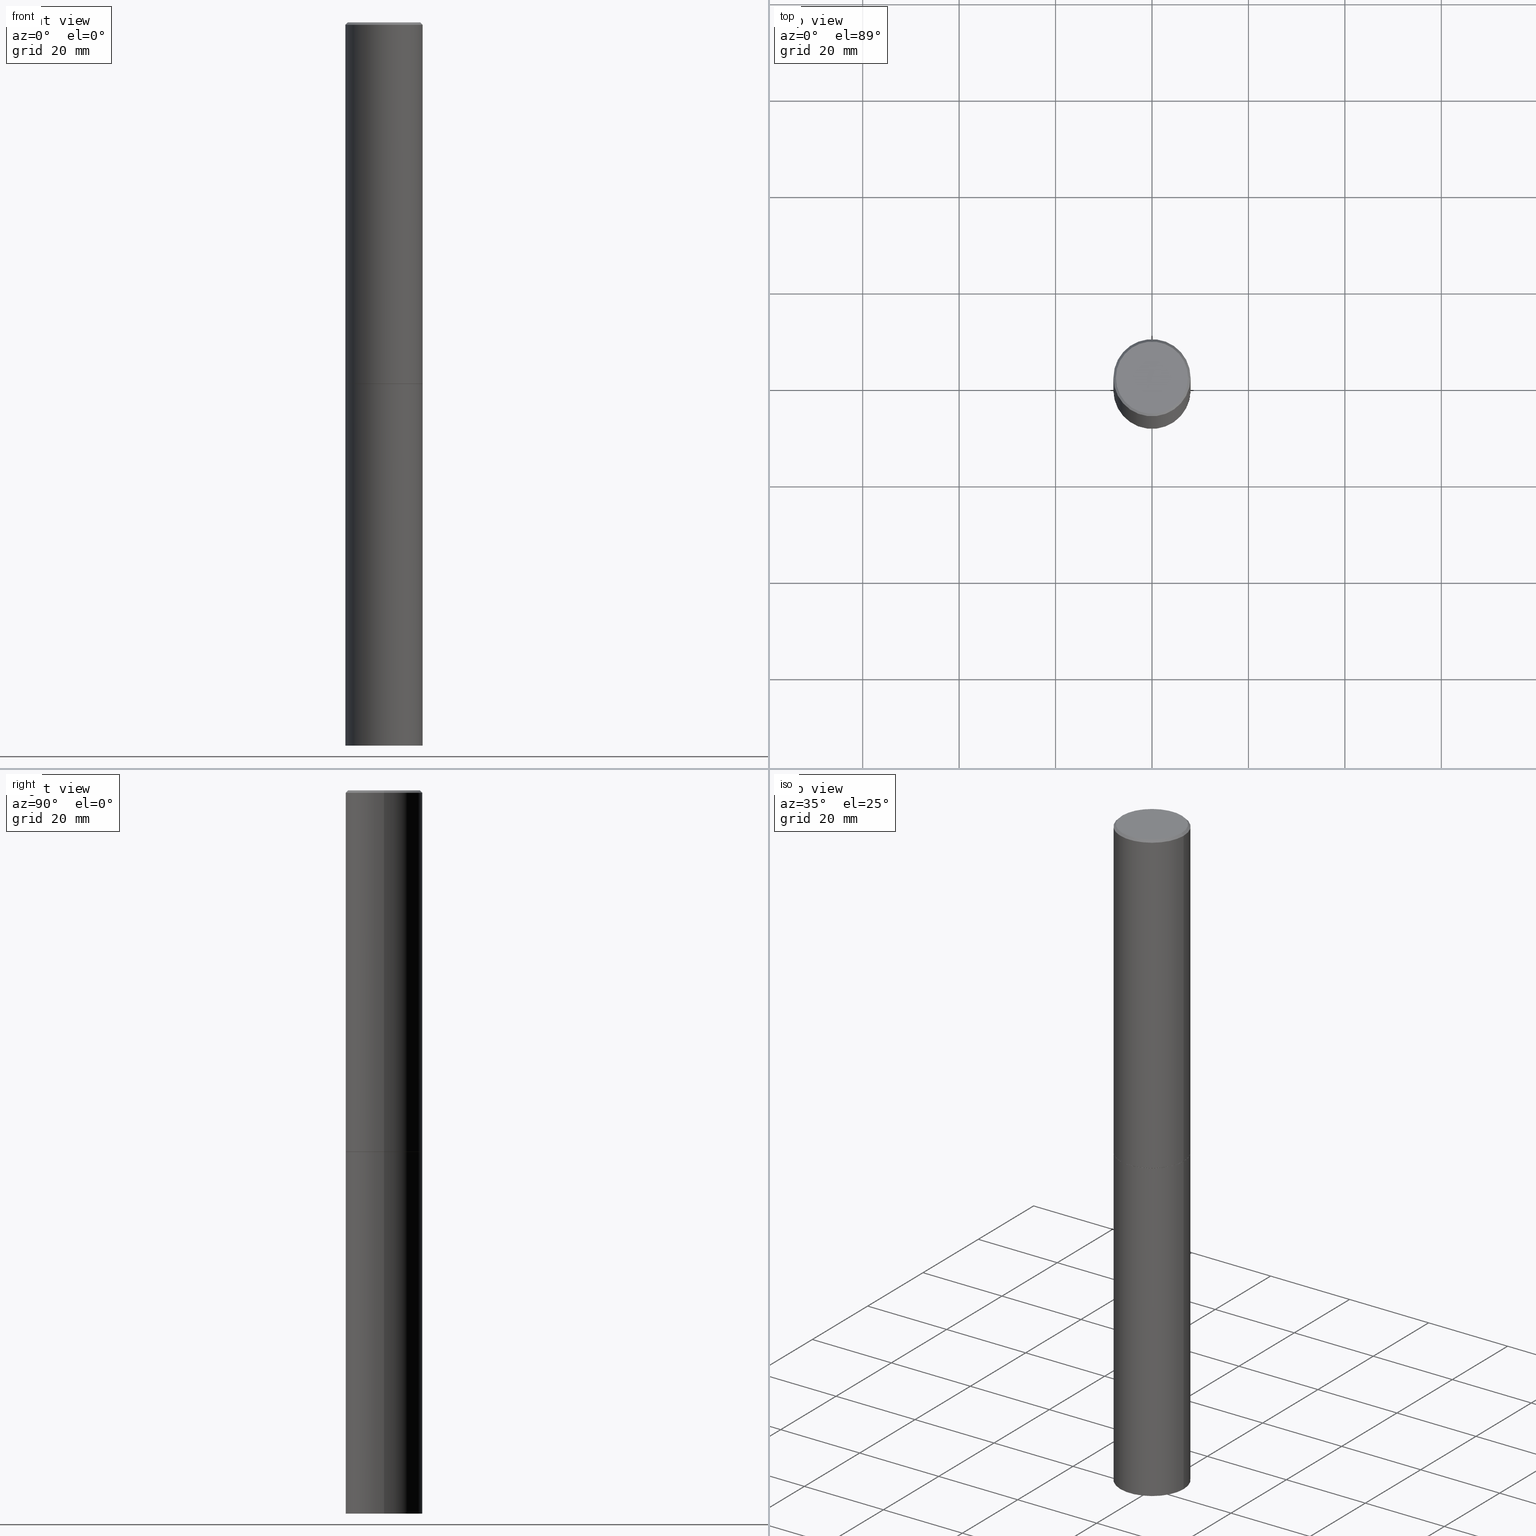
[diagram: canonical four-view strip — front | top / right | iso, engineering-drawing reading convention]
A machine part, canonical four-view strip (front | top / right | iso — engineering-drawing reading convention). The complete STEP part file that produces these views, byte-faithful:
ISO-10303-21;
HEADER;
FILE_DESCRIPTION (( 'STEP AP203' ),
    '1' );
FILE_NAME ('49475.STEP',
    '2024-02-28T23:04:33',
    ( '' ),
    ( '' ),
    'SwSTEP 2.0',
    'SolidWorks 2023',
    '' );
FILE_SCHEMA (( 'CONFIG_CONTROL_DESIGN' ));
ENDSEC;

DATA;
#1 = VECTOR ( 'NONE', #200, 39.37007874015748143 ) ;
#2 = APPLICATION_PROTOCOL_DEFINITION ( 'international standard', 'config_control_design', 1994, #256 ) ;
#3 = VECTOR ( 'NONE', #67, 39.37007874015748143 ) ;
#4 = ORIENTED_EDGE ( 'NONE', *, *, #334, .F. ) ;
#5 = CARTESIAN_POINT ( 'NONE',  ( -0.3149500000000000077, -2.949963201043651274E-15, -2.951700000000000212 ) ) ;
#6 = CARTESIAN_POINT ( 'NONE',  ( -0.3149500000000000077, 2.237854346276435590E-15, -1.549218606675782676E-29 ) ) ;
#7 = EDGE_CURVE ( 'NONE', #56, #255, #266, .T. ) ;
#8 = DIRECTION ( 'NONE',  ( -2.445468806185136597E-29, 3.491481338843145583E-15, 1.000000000000000000 ) ) ;
#9 = DATE_TIME_ROLE ( 'classification_date' ) ;
#10 = DIRECTION ( 'NONE',  ( 1.000000000000000000, -6.982962677686265133E-15, 0.000000000000000000 ) ) ;
#11 = DATE_AND_TIME ( #238, #287 ) ;
#12 = DIRECTION ( 'NONE',  ( -2.445468806185136597E-29, 3.491481338843145583E-15, 1.000000000000000000 ) ) ;
#13 = DIRECTION ( 'NONE',  ( -2.445468806185136877E-29, 3.491481338843145188E-15, 1.000000000000000000 ) ) ;
#14 = CIRCLE ( 'NONE', #143, 0.2949499999999996014 ) ;
#15 = FACE_OUTER_BOUND ( 'NONE', #192, .T. ) ;
#16 = FACE_OUTER_BOUND ( 'NONE', #315, .T. ) ;
#17 = APPROVAL ( #348, 'UNSPECIFIED' ) ;
#18 = CARTESIAN_POINT ( 'NONE',  ( 7.220735744022853640E-29, -1.030929694920215659E-14, -2.952700000000000546 ) ) ;
#19 = DIRECTION ( 'NONE',  ( -2.445468806185136877E-29, 3.491481338843145188E-15, 1.000000000000000000 ) ) ;
#20 = COORDINATED_UNIVERSAL_TIME_OFFSET ( 5, 0, .BEHIND. ) ;
#21 = ORIENTED_EDGE ( 'NONE', *, *, #188, .F. ) ;
#22 = DIRECTION ( 'NONE',  ( 1.000000000000000000, -6.982962677686263555E-15, 0.000000000000000000 ) ) ;
#23 = ORIENTED_EDGE ( 'NONE', *, *, #97, .T. ) ;
#24 = LOCAL_TIME ( 18, 4, 33.00000000000000000, #20 ) ;
#25 = ORIENTED_EDGE ( 'NONE', *, *, #364, .T. ) ;
#26 =( NAMED_UNIT ( * ) PLANE_ANGLE_UNIT ( ) SI_UNIT ( $, .RADIAN. ) );
#27 = ORIENTED_EDGE ( 'NONE', *, *, #217, .F. ) ;
#28 = VECTOR ( 'NONE', #177, 39.37007874015748143 ) ;
#29 = FACE_OUTER_BOUND ( 'NONE', #113, .T. ) ;
#30 = LINE ( 'NONE', #320, #46 ) ;
#31 = EDGE_CURVE ( 'NONE', #91, #313, #14, .T. ) ;
#32 = CARTESIAN_POINT ( 'NONE',  ( 7.220735744022853640E-29, -1.030929694920215659E-14, -2.952700000000000546 ) ) ;
#33 = AXIS2_PLACEMENT_3D ( 'NONE', #242, #218, #100 ) ;
#34 = LINE ( 'NONE', #151, #294 ) ;
#35 = EDGE_CURVE ( 'NONE', #251, #80, #30, .T. ) ;
#36 = DIRECTION ( 'NONE',  ( -2.445468806185136597E-29, 3.491481338843145583E-15, 1.000000000000000000 ) ) ;
#37 = LINE ( 'NONE', #245, #292 ) ;
#38 = CYLINDRICAL_SURFACE ( 'NONE', #156, 0.3149500000000000077 ) ;
#39 = AXIS2_PLACEMENT_3D ( 'NONE', #324, #361, #325 ) ;
#40 = LOCAL_TIME ( 18, 4, 33.00000000000000000, #261 ) ;
#41 = FACE_OUTER_BOUND ( 'NONE', #341, .T. ) ;
#42 = APPROVAL ( #350, 'UNSPECIFIED' ) ;
#43 = CYLINDRICAL_SURFACE ( 'NONE', #214, 0.3149499999999998967 ) ;
#44 = CARTESIAN_POINT ( 'NONE',  ( 4.890937612370290675E-31, -6.982962677686316261E-17, -0.02000000000000007327 ) ) ;
#45 = EDGE_LOOP ( 'NONE', ( #234, #50, #23, #288 ) ) ;
#46 = VECTOR ( 'NONE', #152, 39.37007874015748143 ) ;
#47 = DIRECTION ( 'NONE',  ( 2.438088387897960049E-29, -3.491481338843145188E-15, -1.000000000000000000 ) ) ;
#48 = PRODUCT_RELATED_PRODUCT_CATEGORY ( 'detail', '', ( #263 ) ) ;
#49 = PERSON_AND_ORGANIZATION_ROLE ( 'design_owner' ) ;
#50 = ORIENTED_EDGE ( 'NONE', *, *, #123, .T. ) ;
#51 = ORIENTED_EDGE ( 'NONE', *, *, #7, .F. ) ;
#52 = AXIS2_PLACEMENT_3D ( 'NONE', #32, #147, #267 ) ;
#53 = AXIS2_PLACEMENT_3D ( 'NONE', #139, #193, #259 ) ;
#54 = CARTESIAN_POINT ( 'NONE',  ( -0.3149499999999996747, 2.129454468560424206E-15, -0.02000000000000007327 ) ) ;
#55 =( NAMED_UNIT ( * ) SI_UNIT ( $, .STERADIAN. ) SOLID_ANGLE_UNIT ( ) );
#56 = VERTEX_POINT ( 'NONE', #297 ) ;
#57 = AXIS2_PLACEMENT_3D ( 'NONE', #144, #351, #203 ) ;
#58 = DIRECTION ( 'NONE',  ( 1.000000000000000000, -6.982962677686265133E-15, 0.000000000000000000 ) ) ;
#59 = EDGE_CURVE ( 'NONE', #91, #170, #271, .T. ) ;
#60 = DIRECTION ( 'NONE',  ( -1.000000000000000000, 6.982962677686265922E-15, -4.876176775795935793E-29 ) ) ;
#61 = APPROVAL_DATE_TIME ( #262, #42 ) ;
#62 = ORIENTED_EDGE ( 'NONE', *, *, #31, .F. ) ;
#63 = AXIS2_PLACEMENT_3D ( 'NONE', #120, #346, #205 ) ;
#64 = PLANE ( 'NONE',  #130 ) ;
#65 = CC_DESIGN_APPROVAL ( #42, ( #89 ) ) ;
#66 = DIRECTION ( 'NONE',  ( 1.000000000000000000, -6.982962677686265133E-15, 0.000000000000000000 ) ) ;
#67 = DIRECTION ( 'NONE',  ( -2.445468806185136877E-29, 3.491481338843145188E-15, 1.000000000000000000 ) ) ;
#68 = DIRECTION ( 'NONE',  ( 2.445468806185136597E-29, -3.491481338843145583E-15, -1.000000000000000000 ) ) ;
#69 = CIRCLE ( 'NONE', #227, 0.3139500000000000624 ) ;
#70 = APPROVAL_PERSON_ORGANIZATION ( #110, #42, #243 ) ;
#71 = APPROVAL_DATE_TIME ( #11, #17 ) ;
#72 = EDGE_CURVE ( 'NONE', #170, #362, #358, .T. ) ;
#73 = DIRECTION ( 'NONE',  ( 1.000000000000000000, -6.982962677686265922E-15, 4.876176775795935232E-29 ) ) ;
#74 = CARTESIAN_POINT ( 'NONE',  ( 0.000000000000000000, 0.000000000000000000, 0.000000000000000000 ) ) ;
#75 = PRODUCT_DEFINITION ( 'UNKNOWN', '', #89, #166 ) ;
#76 = DATE_AND_TIME ( #107, #102 ) ;
#77 = ORIENTED_EDGE ( 'NONE', *, *, #165, .T. ) ;
#78 = ORIENTED_EDGE ( 'NONE', *, *, #217, .T. ) ;
#79 = DIRECTION ( 'NONE',  ( -1.000000000000000000, 6.982962677686265922E-15, -4.876176775795935793E-29 ) ) ;
#80 = VERTEX_POINT ( 'NONE', #5 ) ;
#81 = EDGE_CURVE ( 'NONE', #264, #251, #94, .T. ) ;
#82 = PLANE ( 'NONE',  #175 ) ;
#83 = ORIENTED_EDGE ( 'NONE', *, *, #111, .F. ) ;
#84 = ORIENTED_EDGE ( 'NONE', *, *, #340, .F. ) ;
#85 = EDGE_CURVE ( 'NONE', #226, #80, #279, .T. ) ;
#86 = DIRECTION ( 'NONE',  ( 1.000000000000000000, -6.982962677686266711E-15, 0.000000000000000000 ) ) ;
#87 = APPROVAL_ROLE ( '' ) ;
#88 = AXIS2_PLACEMENT_3D ( 'NONE', #319, #322, #10 ) ;
#89 = PRODUCT_DEFINITION_FORMATION_WITH_SPECIFIED_SOURCE ( 'ANY', '', #263, .NOT_KNOWN. ) ;
#90 = CARTESIAN_POINT ( 'NONE',  ( 0.3139500000000000624, -1.250159808186176045E-14, -2.952700000000000546 ) ) ;
#91 = VERTEX_POINT ( 'NONE', #122 ) ;
#92 = CARTESIAN_POINT ( 'NONE',  ( 7.220735744022853640E-29, -1.030929694920215659E-14, -2.952700000000000546 ) ) ;
#93 = APPLICATION_CONTEXT ( 'configuration controlled 3d designs of mechanical parts and assemblies' ) ;
#94 = CIRCLE ( 'NONE', #88, 0.3139500000000000624 ) ;
#95 = FACE_OUTER_BOUND ( 'NONE', #199, .T. ) ;
#96 = DIRECTION ( 'NONE',  ( -0.7071067811865472397, 2.468850131082253905E-15, -0.7071067811865477948 ) ) ;
#97 = EDGE_CURVE ( 'NONE', #264, #226, #231, .T. ) ;
#98 = FACE_OUTER_BOUND ( 'NONE', #172, .T. ) ;
#99 = SHAPE_DEFINITION_REPRESENTATION ( #195, #191 ) ;
#100 = DIRECTION ( 'NONE',  ( 1.000000000000000000, -6.982962677686263555E-15, 0.000000000000000000 ) ) ;
#101 = CONICAL_SURFACE ( 'NONE', #215, 0.3149499999999996747, 0.7853981633974479459 ) ;
#102 = LOCAL_TIME ( 18, 4, 33.00000000000000000, #253 ) ;
#103 = CYLINDRICAL_SURFACE ( 'NONE', #343, 0.3149500000000000077 ) ;
#104 = ADVANCED_FACE ( 'NONE', ( #349 ), #285, .T. ) ;
#105 = CARTESIAN_POINT ( 'NONE',  ( 0.3149500000000000077, -2.281822714187548341E-14, -5.905499999999999972 ) ) ;
#106 = UNCERTAINTY_MEASURE_WITH_UNIT (LENGTH_MEASURE( 1.000000000000000082E-05 ), #310, 'distance_accuracy_value', 'NONE');
#107 = CALENDAR_DATE ( 2024, 28, 2 ) ;
#108 = EDGE_LOOP ( 'NONE', ( #321, #77, #225, #4 ) ) ;
#109 = ORGANIZATION ( 'UNSPECIFIED', 'UNSPECIFIED', '' ) ;
#110 = PERSON_AND_ORGANIZATION ( #337, #109 ) ;
#111 = EDGE_CURVE ( 'NONE', #176, #255, #309, .T. ) ;
#112 = ORIENTED_EDGE ( 'NONE', *, *, #35, .T. ) ;
#113 = EDGE_LOOP ( 'NONE', ( #339, #290 ) ) ;
#114 = PERSON_AND_ORGANIZATION ( #337, #109 ) ;
#115 = ORIENTED_EDGE ( 'NONE', *, *, #265, .T. ) ;
#116 = CC_DESIGN_DATE_AND_TIME_ASSIGNMENT ( #76, #163, ( #75 ) ) ;
#117 = CARTESIAN_POINT ( 'NONE',  ( 7.218290275216666916E-29, -1.030580546786331359E-14, -2.951700000000000212 ) ) ;
#118 = DIRECTION ( 'NONE',  ( 1.000000000000000000, -6.982962677686266711E-15, 4.876053491004741073E-29 ) ) ;
#119 = AXIS2_PLACEMENT_3D ( 'NONE', #330, #158, #354 ) ;
#120 = CARTESIAN_POINT ( 'NONE',  ( 4.890937612370290675E-31, -6.982962677686316261E-17, -0.02000000000000007327 ) ) ;
#121 = COORDINATED_UNIVERSAL_TIME_OFFSET ( 5, 0, .BEHIND. ) ;
#122 = CARTESIAN_POINT ( 'NONE',  ( 0.2949499999999996014, -2.127023677808857708E-15, 4.268512490115050658E-18 ) ) ;
#123 = EDGE_CURVE ( 'NONE', #251, #264, #69, .T. ) ;
#124 = CALENDAR_DATE ( 2024, 28, 2 ) ;
#125 = DIRECTION ( 'NONE',  ( 1.000000000000000000, -6.982962677686263555E-15, 0.000000000000000000 ) ) ;
#126 = CARTESIAN_POINT ( 'NONE',  ( 0.000000000000000000, 0.000000000000000000, 0.000000000000000000 ) ) ;
#127 = DIRECTION ( 'NONE',  ( -2.445468806185136597E-29, 3.491481338843145583E-15, 1.000000000000000000 ) ) ;
#128 = DIRECTION ( 'NONE',  ( -2.445468806185136597E-29, 3.491481338843145583E-15, 1.000000000000000000 ) ) ;
#129 = DIRECTION ( 'NONE',  ( -2.445468806185136597E-29, 3.491481338843145583E-15, 1.000000000000000000 ) ) ;
#130 = AXIS2_PLACEMENT_3D ( 'NONE', #181, #210, #60 ) ;
#131 = FACE_OUTER_BOUND ( 'NONE', #108, .T. ) ;
#132 = DATE_AND_TIME ( #134, #24 ) ;
#133 = EDGE_LOOP ( 'NONE', ( #196, #335 ) ) ;
#134 = CALENDAR_DATE ( 2024, 28, 2 ) ;
#135 = ADVANCED_FACE ( 'NONE', ( #95 ), #64, .T. ) ;
#136 = EDGE_LOOP ( 'NONE', ( #62, #138, #230, #342 ) ) ;
#137 = DIRECTION ( 'NONE',  ( 1.000000000000000000, 0.000000000000000000, 0.000000000000000000 ) ) ;
#138 = ORIENTED_EDGE ( 'NONE', *, *, #59, .T. ) ;
#139 = CARTESIAN_POINT ( 'NONE',  ( 7.218290275216666916E-29, -1.030580546786331359E-14, -2.951700000000000212 ) ) ;
#140 = ORIENTED_EDGE ( 'NONE', *, *, #182, .T. ) ;
#141 = ADVANCED_FACE ( 'NONE', ( #29 ), #298, .F. ) ;
#142 = SECURITY_CLASSIFICATION_LEVEL ( 'unclassified' ) ;
#143 = AXIS2_PLACEMENT_3D ( 'NONE', #237, #8, #118 ) ;
#144 = CARTESIAN_POINT ( 'NONE',  ( 7.220735744022852519E-29, -1.030929694920215502E-14, -2.952700000000000102 ) ) ;
#145 = PERSON_AND_ORGANIZATION ( #337, #109 ) ;
#146 = CARTESIAN_POINT ( 'NONE',  ( 0.3149499999999996747, -2.230543471175005083E-15, -0.02000000000000007327 ) ) ;
#147 = DIRECTION ( 'NONE',  ( -2.438088387897960049E-29, 3.491481338843145188E-15, 1.000000000000000000 ) ) ;
#148 = PERSON_AND_ORGANIZATION ( #337, #109 ) ;
#149 = APPROVAL_PERSON_ORGANIZATION ( #145, #17, #87 ) ;
#150 = CC_DESIGN_DATE_AND_TIME_ASSIGNMENT ( #174, #9, ( #363 ) ) ;
#151 = CARTESIAN_POINT ( 'NONE',  ( -0.3149499999999998967, 2.237854346276434801E-15, -1.549218606675782116E-29 ) ) ;
#152 = DIRECTION ( 'NONE',  ( -0.7071067811864026886, 7.493145998869830357E-15, 0.7071067811866923458 ) ) ;
#153 = CARTESIAN_POINT ( 'NONE',  ( -0.3139500000000000624, -8.073249575935100004E-15, -2.952700000000000546 ) ) ;
#154 = EDGE_CURVE ( 'NONE', #362, #170, #352, .T. ) ;
#155 = CONICAL_SURFACE ( 'NONE', #201, 0.3149499999999996747, 0.7853981633974479459 ) ;
#156 = AXIS2_PLACEMENT_3D ( 'NONE', #184, #280, #219 ) ;
#157 = CARTESIAN_POINT ( 'NONE',  ( -0.3149499999999996747, 2.129454468560424206E-15, -0.02000000000000007327 ) ) ;
#158 = DIRECTION ( 'NONE',  ( -2.445468806185136597E-29, 3.491481338843145583E-15, 1.000000000000000000 ) ) ;
#159 = DIRECTION ( 'NONE',  ( -2.445468806185136597E-29, 3.491481338843145583E-15, 1.000000000000000000 ) ) ;
#160 = FACE_OUTER_BOUND ( 'NONE', #136, .T. ) ;
#161 = CC_DESIGN_SECURITY_CLASSIFICATION ( #363, ( #89 ) ) ;
#162 = PERSON_AND_ORGANIZATION_ROLE ( 'creator' ) ;
#163 = DATE_TIME_ROLE ( 'creation_date' ) ;
#164 = ORIENTED_EDGE ( 'NONE', *, *, #31, .T. ) ;
#165 = EDGE_CURVE ( 'NONE', #80, #362, #34, .T. ) ;
#166 = DESIGN_CONTEXT ( 'detailed design', #256, 'design' ) ;
#167 = DIRECTION ( 'NONE',  ( -2.445468806185136597E-29, 3.491481338843145583E-15, 1.000000000000000000 ) ) ;
#168 = PERSON_AND_ORGANIZATION_ROLE ( 'design_supplier' ) ;
#169 = DIRECTION ( 'NONE',  ( 0.000000000000000000, 0.000000000000000000, 1.000000000000000000 ) ) ;
#170 = VERTEX_POINT ( 'NONE', #273 ) ;
#171 = CARTESIAN_POINT ( 'NONE',  ( 0.000000000000000000, 0.000000000000000000, 0.000000000000000000 ) ) ;
#172 = EDGE_LOOP ( 'NONE', ( #194, #25, #333, #317 ) ) ;
#173 = EDGE_LOOP ( 'NONE', ( #257, #112, #281, #284 ) ) ;
#174 = DATE_AND_TIME ( #269, #40 ) ;
#175 = AXIS2_PLACEMENT_3D ( 'NONE', #316, #47, #79 ) ;
#176 = VERTEX_POINT ( 'NONE', #186 ) ;
#177 = DIRECTION ( 'NONE',  ( 0.7071067811865472397, -7.319954787623254468E-15, -0.7071067811865477948 ) ) ;
#178 = ADVANCED_FACE ( 'NONE', ( #275 ), #308, .F. ) ;
#179 = PERSON_AND_ORGANIZATION ( #337, #109 ) ;
#180 = ORIENTED_EDGE ( 'NONE', *, *, #228, .F. ) ;
#181 = CARTESIAN_POINT ( 'NONE',  ( 2.199284095337433838E-15, 0.3149499999999793576, -5.905500000000000860 ) ) ;
#182 = EDGE_CURVE ( 'NONE', #272, #176, #37, .T. ) ;
#183 = DIRECTION ( 'NONE',  ( -2.445468806185136597E-29, 3.491481338843145583E-15, 1.000000000000000000 ) ) ;
#184 = CARTESIAN_POINT ( 'NONE',  ( 0.000000000000000000, 0.000000000000000000, 0.000000000000000000 ) ) ;
#185 = CC_DESIGN_APPROVAL ( #300, ( #75 ) ) ;
#186 = CARTESIAN_POINT ( 'NONE',  ( 0.3149500000000000077, -1.250858104453944331E-14, -2.952700000000000102 ) ) ;
#187 = CARTESIAN_POINT ( 'NONE',  ( 0.3139500000000000624, -1.250159808186176045E-14, -2.952700000000000546 ) ) ;
#188 = EDGE_CURVE ( 'NONE', #56, #272, #336, .T. ) ;
#189 = DIRECTION ( 'NONE',  ( -1.000000000000000000, 6.982962677686266711E-15, 0.000000000000000000 ) ) ;
#190 = APPROVAL_STATUS ( 'not_yet_approved' ) ;
#191 = ADVANCED_BREP_SHAPE_REPRESENTATION ( '49475', ( #232, #356, #331 ), #338 ) ;
#192 = EDGE_LOOP ( 'NONE', ( #344, #27, #115, #260 ) ) ;
#193 = DIRECTION ( 'NONE',  ( -2.445468806185136597E-29, 3.491481338843145583E-15, 1.000000000000000000 ) ) ;
#194 = ORIENTED_EDGE ( 'NONE', *, *, #165, .F. ) ;
#195 = PRODUCT_DEFINITION_SHAPE ( 'NONE', 'NONE',  #75 ) ;
#196 = ORIENTED_EDGE ( 'NONE', *, *, #111, .T. ) ;
#197 = AXIS2_PLACEMENT_3D ( 'NONE', #299, #36, #86 ) ;
#198 = FACE_OUTER_BOUND ( 'NONE', #133, .T. ) ;
#199 = EDGE_LOOP ( 'NONE', ( #180, #21 ) ) ;
#200 = DIRECTION ( 'NONE',  ( -2.445468806185136877E-29, 3.491481338843145188E-15, 1.000000000000000000 ) ) ;
#201 = AXIS2_PLACEMENT_3D ( 'NONE', #357, #68, #306 ) ;
#202 = CC_DESIGN_APPROVAL ( #17, ( #363 ) ) ;
#203 = DIRECTION ( 'NONE',  ( 1.000000000000000000, -6.982962677686263555E-15, 0.000000000000000000 ) ) ;
#204 = CC_DESIGN_PERSON_AND_ORGANIZATION_ASSIGNMENT ( #311, #49, ( #263 ) ) ;
#205 = DIRECTION ( 'NONE',  ( 1.000000000000000000, -6.982962677686266711E-15, 0.000000000000000000 ) ) ;
#206 = DIRECTION ( 'NONE',  ( -2.445468806185136597E-29, 3.491481338843145583E-15, 1.000000000000000000 ) ) ;
#207 = CLOSED_SHELL ( 'NONE', ( #220, #135, #360, #276 ) ) ;
#208 = ADVANCED_FACE ( 'NONE', ( #15 ), #155, .T. ) ;
#209 = CIRCLE ( 'NONE', #53, 0.3149500000000000077 ) ;
#210 = DIRECTION ( 'NONE',  ( 2.438088387897960049E-29, -3.491481338843145188E-15, -1.000000000000000000 ) ) ;
#211 = CARTESIAN_POINT ( 'NONE',  ( 0.3149499999999998967, -2.199284095337288688E-15, 1.535751875536929289E-29 ) ) ;
#212 = CARTESIAN_POINT ( 'NONE',  ( -0.3149500000000000077, -1.322626565159373987E-14, -2.952700000000000102 ) ) ;
#213 = DIMENSIONAL_EXPONENTS ( 1.000000000000000000, 0.000000000000000000, 0.000000000000000000, 0.000000000000000000, 0.000000000000000000, 0.000000000000000000, 0.000000000000000000 ) ;
#214 = AXIS2_PLACEMENT_3D ( 'NONE', #74, #159, #277 ) ;
#215 = AXIS2_PLACEMENT_3D ( 'NONE', #44, #353, #189 ) ;
#216 = CARTESIAN_POINT ( 'NONE',  ( -1.043851414335219820E-46, 1.490343170380447200E-32, 4.268512490100411279E-18 ) ) ;
#217 = EDGE_CURVE ( 'NONE', #313, #91, #274, .T. ) ;
#218 = DIRECTION ( 'NONE',  ( -2.445468806185136597E-29, 3.491481338843145583E-15, 1.000000000000000000 ) ) ;
#219 = DIRECTION ( 'NONE',  ( 1.000000000000000000, -6.982962677686266711E-15, 4.876176775795936353E-29 ) ) ;
#220 = ADVANCED_FACE ( 'NONE', ( #41 ), #103, .T. ) ;
#221 = VECTOR ( 'NONE', #239, 39.37007874015748143 ) ;
#222 = APPROVAL_DATE_TIME ( #132, #300 ) ;
#223 = AXIS2_PLACEMENT_3D ( 'NONE', #303, #128, #73 ) ;
#224 = LENGTH_MEASURE_WITH_UNIT ( LENGTH_MEASURE( 0.02539999999999999897 ), #286 );
#225 = ORIENTED_EDGE ( 'NONE', *, *, #72, .F. ) ;
#226 = VERTEX_POINT ( 'NONE', #359 ) ;
#227 = AXIS2_PLACEMENT_3D ( 'NONE', #301, #240, #58 ) ;
#228 = EDGE_CURVE ( 'NONE', #272, #56, #304, .T. ) ;
#229 = CARTESIAN_POINT ( 'NONE',  ( 7.220735744022852519E-29, -1.030929694920215502E-14, -2.952700000000000102 ) ) ;
#230 = ORIENTED_EDGE ( 'NONE', *, *, #72, .T. ) ;
#231 = LINE ( 'NONE', #90, #221 ) ;
#232 = MANIFOLD_SOLID_BREP ( 'Body-Move/Copy2[1]', #207 ) ;
#233 = ADVANCED_FACE ( 'NONE', ( #98 ), #43, .T. ) ;
#234 = ORIENTED_EDGE ( 'NONE', *, *, #35, .F. ) ;
#235 = AXIS2_PLACEMENT_3D ( 'NONE', #117, #12, #125 ) ;
#236 = AXIS2_PLACEMENT_3D ( 'NONE', #229, #167, #22 ) ;
#237 = CARTESIAN_POINT ( 'NONE',  ( -1.043851414335219820E-46, 1.490343170380447200E-32, 4.268512490100411279E-18 ) ) ;
#238 = CALENDAR_DATE ( 2024, 28, 2 ) ;
#239 = DIRECTION ( 'NONE',  ( 0.7071067811864026886, -2.468850131080739687E-15, 0.7071067811866923458 ) ) ;
#240 = DIRECTION ( 'NONE',  ( -2.445468806185136597E-29, 3.491481338843145583E-15, 1.000000000000000000 ) ) ;
#241 = CLOSED_SHELL ( 'NONE', ( #104, #295, #249, #208, #233, #328, #141, #178 ) ) ;
#242 = CARTESIAN_POINT ( 'NONE',  ( 1.444171603492632270E-28, -2.061894304653819197E-14, -5.905499999999999972 ) ) ;
#243 = APPROVAL_ROLE ( '' ) ;
#244 = DIRECTION ( 'NONE',  ( 1.000000000000000000, -6.982962677686266711E-15, 4.876053491004741073E-29 ) ) ;
#245 = CARTESIAN_POINT ( 'NONE',  ( 0.3149500000000000077, -2.199284095337289871E-15, 1.535751875536930130E-29 ) ) ;
#246 = AXIS2_PLACEMENT_3D ( 'NONE', #92, #206, #66 ) ;
#247 = DIRECTION ( 'NONE',  ( 1.000000000000000000, -6.982962677686265133E-15, 0.000000000000000000 ) ) ;
#248 = CYLINDRICAL_SURFACE ( 'NONE', #223, 0.3149499999999998967 ) ;
#249 = ADVANCED_FACE ( 'NONE', ( #160 ), #101, .T. ) ;
#250 = PERSON_AND_ORGANIZATION_ROLE ( 'creator' ) ;
#251 = VERTEX_POINT ( 'NONE', #153 ) ;
#252 = AXIS2_PLACEMENT_3D ( 'NONE', #216, #127, #244 ) ;
#253 = COORDINATED_UNIVERSAL_TIME_OFFSET ( 5, 0, .BEHIND. ) ;
#254 = CONICAL_SURFACE ( 'NONE', #296, 0.3139500000000000624, 0.7853981633972434429 ) ;
#255 = VERTEX_POINT ( 'NONE', #212 ) ;
#256 = APPLICATION_CONTEXT ( 'configuration controlled 3d designs of mechanical parts and assemblies' ) ;
#257 = ORIENTED_EDGE ( 'NONE', *, *, #81, .T. ) ;
#258 = PERSON_AND_ORGANIZATION_ROLE ( 'classification_officer' ) ;
#259 = DIRECTION ( 'NONE',  ( 1.000000000000000000, -6.982962677686263555E-15, 0.000000000000000000 ) ) ;
#260 = ORIENTED_EDGE ( 'NONE', *, *, #154, .T. ) ;
#261 = COORDINATED_UNIVERSAL_TIME_OFFSET ( 5, 0, .BEHIND. ) ;
#262 = DATE_AND_TIME ( #124, #326 ) ;
#263 = PRODUCT ( '49475', '49475', '', ( #291 ) ) ;
#264 = VERTEX_POINT ( 'NONE', #187 ) ;
#265 = EDGE_CURVE ( 'NONE', #313, #362, #327, .T. ) ;
#266 = LINE ( 'NONE', #6, #1 ) ;
#267 = DIRECTION ( 'NONE',  ( 1.000000000000000000, -6.982962677686265922E-15, 4.876176775795935793E-29 ) ) ;
#268 = VECTOR ( 'NONE', #96, 39.37007874015748143 ) ;
#269 = CALENDAR_DATE ( 2024, 28, 2 ) ;
#270 = CC_DESIGN_PERSON_AND_ORGANIZATION_ASSIGNMENT ( #148, #258, ( #363 ) ) ;
#271 = LINE ( 'NONE', #146, #28 ) ;
#272 = VERTEX_POINT ( 'NONE', #105 ) ;
#273 = CARTESIAN_POINT ( 'NONE',  ( 0.3149499999999996747, -2.230543471175005083E-15, -0.02000000000000007327 ) ) ;
#274 = CIRCLE ( 'NONE', #252, 0.2949499999999996014 ) ;
#275 = FACE_OUTER_BOUND ( 'NONE', #323, .T. ) ;
#276 = ADVANCED_FACE ( 'NONE', ( #16 ), #38, .T. ) ;
#277 = DIRECTION ( 'NONE',  ( 1.000000000000000000, -6.982962677686265922E-15, 4.876176775795935232E-29 ) ) ;
#278 = FACE_OUTER_BOUND ( 'NONE', #45, .T. ) ;
#279 = CIRCLE ( 'NONE', #235, 0.3149500000000000077 ) ;
#280 = DIRECTION ( 'NONE',  ( -2.445468806185136597E-29, 3.491481338843145583E-15, 1.000000000000000000 ) ) ;
#281 = ORIENTED_EDGE ( 'NONE', *, *, #85, .F. ) ;
#282 = PERSON_AND_ORGANIZATION ( #337, #109 ) ;
#283 = APPROVAL_ROLE ( '' ) ;
#284 = ORIENTED_EDGE ( 'NONE', *, *, #97, .F. ) ;
#285 = CONICAL_SURFACE ( 'NONE', #246, 0.3139500000000000624, 0.7853981633972434429 ) ;
#286 =( LENGTH_UNIT ( ) NAMED_UNIT ( * ) SI_UNIT ( $, .METRE. ) );
#287 = LOCAL_TIME ( 18, 4, 33.00000000000000000, #121 ) ;
#288 = ORIENTED_EDGE ( 'NONE', *, *, #364, .F. ) ;
#289 = CC_DESIGN_PERSON_AND_ORGANIZATION_ASSIGNMENT ( #282, #168, ( #89 ) ) ;
#290 = ORIENTED_EDGE ( 'NONE', *, *, #123, .F. ) ;
#291 = MECHANICAL_CONTEXT ( 'NONE', #93, 'mechanical' ) ;
#292 = VECTOR ( 'NONE', #19, 39.37007874015748143 ) ;
#293 = ORIENTED_EDGE ( 'NONE', *, *, #182, .F. ) ;
#294 = VECTOR ( 'NONE', #13, 39.37007874015748143 ) ;
#295 = ADVANCED_FACE ( 'NONE', ( #131 ), #248, .T. ) ;
#296 = AXIS2_PLACEMENT_3D ( 'NONE', #18, #183, #247 ) ;
#297 = CARTESIAN_POINT ( 'NONE',  ( -0.3149500000000000077, -1.322626565159373987E-14, -5.905499999999999972 ) ) ;
#298 = PLANE ( 'NONE',  #52 ) ;
#299 = CARTESIAN_POINT ( 'NONE',  ( 4.890937612370290675E-31, -6.982962677686316261E-17, -0.02000000000000007327 ) ) ;
#300 = APPROVAL ( #190, 'UNSPECIFIED' ) ;
#301 = CARTESIAN_POINT ( 'NONE',  ( 7.220735744022853640E-29, -1.030929694920215659E-14, -2.952700000000000546 ) ) ;
#302 = LINE ( 'NONE', #211, #3 ) ;
#303 = CARTESIAN_POINT ( 'NONE',  ( 0.000000000000000000, 0.000000000000000000, 0.000000000000000000 ) ) ;
#304 = CIRCLE ( 'NONE', #119, 0.3149500000000000077 ) ;
#305 = CIRCLE ( 'NONE', #236, 0.3149500000000000077 ) ;
#306 = DIRECTION ( 'NONE',  ( -1.000000000000000000, 6.982962677686266711E-15, 0.000000000000000000 ) ) ;
#307 = CARTESIAN_POINT ( 'NONE',  ( -0.2949499999999996014, 2.094539655171992951E-15, 4.268512490085885145E-18 ) ) ;
#308 = PLANE ( 'NONE',  #39 ) ;
#309 = CIRCLE ( 'NONE', #57, 0.3149500000000000077 ) ;
#310 =( CONVERSION_BASED_UNIT ( 'INCH', #224 ) LENGTH_UNIT ( ) NAMED_UNIT ( #213 ) );
#311 = PERSON_AND_ORGANIZATION ( #337, #109 ) ;
#312 = ORIENTED_EDGE ( 'NONE', *, *, #7, .T. ) ;
#313 = VERTEX_POINT ( 'NONE', #307 ) ;
#314 = CC_DESIGN_PERSON_AND_ORGANIZATION_ASSIGNMENT ( #365, #250, ( #75 ) ) ;
#315 = EDGE_LOOP ( 'NONE', ( #51, #366, #140, #84 ) ) ;
#316 = CARTESIAN_POINT ( 'NONE',  ( 2.199284095337361657E-15, 0.3149499999999896827, -2.952700000000000990 ) ) ;
#317 = ORIENTED_EDGE ( 'NONE', *, *, #154, .F. ) ;
#318 = ORIENTED_EDGE ( 'NONE', *, *, #228, .T. ) ;
#319 = CARTESIAN_POINT ( 'NONE',  ( 7.220735744022853640E-29, -1.030929694920215659E-14, -2.952700000000000546 ) ) ;
#320 = CARTESIAN_POINT ( 'NONE',  ( -0.3139500000000000624, -8.078548030283322406E-15, -2.952700000000000546 ) ) ;
#321 = ORIENTED_EDGE ( 'NONE', *, *, #85, .T. ) ;
#322 = DIRECTION ( 'NONE',  ( -2.445468806185136597E-29, 3.491481338843145583E-15, 1.000000000000000000 ) ) ;
#323 = EDGE_LOOP ( 'NONE', ( #78, #164 ) ) ;
#324 = CARTESIAN_POINT ( 'NONE',  ( 2.059624841783561302E-15, 0.2949499999999996014, -1.027678164646734185E-15 ) ) ;
#325 = DIRECTION ( 'NONE',  ( -1.000000000000000000, 6.982962677686265922E-15, -4.876176775795935793E-29 ) ) ;
#326 = LOCAL_TIME ( 18, 4, 33.00000000000000000, #355 ) ;
#327 = LINE ( 'NONE', #157, #268 ) ;
#328 = ADVANCED_FACE ( 'NONE', ( #278 ), #254, .T. ) ;
#329 = DIRECTION ( 'NONE',  ( 1.000000000000000000, -6.982962677686266711E-15, 4.876176775795936353E-29 ) ) ;
#330 = CARTESIAN_POINT ( 'NONE',  ( 1.444171603492632270E-28, -2.061894304653819197E-14, -5.905499999999999972 ) ) ;
#331 = AXIS2_PLACEMENT_3D ( 'NONE', #171, #169, #137 ) ;
#332 = APPLICATION_PROTOCOL_DEFINITION ( 'international standard', 'config_control_design', 1994, #93 ) ;
#333 = ORIENTED_EDGE ( 'NONE', *, *, #334, .T. ) ;
#334 = EDGE_CURVE ( 'NONE', #226, #170, #302, .T. ) ;
#335 = ORIENTED_EDGE ( 'NONE', *, *, #340, .T. ) ;
#336 = CIRCLE ( 'NONE', #33, 0.3149500000000000077 ) ;
#337 = PERSON ( 'UNSPECIFIED', 'UNSPECIFIED', 'UNSPECIFIED', ('UNSPECIFIED'), ('UNSPECIFIED'), ('UNSPECIFIED') ) ;
#338 =( GEOMETRIC_REPRESENTATION_CONTEXT ( 3 ) GLOBAL_UNCERTAINTY_ASSIGNED_CONTEXT ( ( #106 ) ) GLOBAL_UNIT_ASSIGNED_CONTEXT ( ( #310, #26, #55 ) ) REPRESENTATION_CONTEXT ( 'NONE', 'WORKASPACE' ) );
#339 = ORIENTED_EDGE ( 'NONE', *, *, #81, .F. ) ;
#340 = EDGE_CURVE ( 'NONE', #255, #176, #305, .T. ) ;
#341 = EDGE_LOOP ( 'NONE', ( #318, #312, #83, #293 ) ) ;
#342 = ORIENTED_EDGE ( 'NONE', *, *, #265, .F. ) ;
#343 = AXIS2_PLACEMENT_3D ( 'NONE', #126, #129, #329 ) ;
#344 = ORIENTED_EDGE ( 'NONE', *, *, #59, .F. ) ;
#345 = APPROVAL_PERSON_ORGANIZATION ( #114, #300, #283 ) ;
#346 = DIRECTION ( 'NONE',  ( -2.445468806185136597E-29, 3.491481338843145583E-15, 1.000000000000000000 ) ) ;
#347 = CC_DESIGN_PERSON_AND_ORGANIZATION_ASSIGNMENT ( #179, #162, ( #89 ) ) ;
#348 = APPROVAL_STATUS ( 'not_yet_approved' ) ;
#349 = FACE_OUTER_BOUND ( 'NONE', #173, .T. ) ;
#350 = APPROVAL_STATUS ( 'not_yet_approved' ) ;
#351 = DIRECTION ( 'NONE',  ( -2.445468806185136597E-29, 3.491481338843145583E-15, 1.000000000000000000 ) ) ;
#352 = CIRCLE ( 'NONE', #63, 0.3149499999999996747 ) ;
#353 = DIRECTION ( 'NONE',  ( 2.445468806185136597E-29, -3.491481338843145583E-15, -1.000000000000000000 ) ) ;
#354 = DIRECTION ( 'NONE',  ( 1.000000000000000000, -6.982962677686263555E-15, 0.000000000000000000 ) ) ;
#355 = COORDINATED_UNIVERSAL_TIME_OFFSET ( 5, 0, .BEHIND. ) ;
#356 = MANIFOLD_SOLID_BREP ( 'Body-Move/Copy2[2]', #241 ) ;
#357 = CARTESIAN_POINT ( 'NONE',  ( 4.890937612370290675E-31, -6.982962677686316261E-17, -0.02000000000000007327 ) ) ;
#358 = CIRCLE ( 'NONE', #197, 0.3149499999999996747 ) ;
#359 = CARTESIAN_POINT ( 'NONE',  ( 0.3149500000000000077, -1.250508956320060346E-14, -2.951700000000000212 ) ) ;
#360 = ADVANCED_FACE ( 'NONE', ( #198 ), #82, .F. ) ;
#361 = DIRECTION ( 'NONE',  ( 2.438088387897960049E-29, -3.491481338843145188E-15, -1.000000000000000000 ) ) ;
#362 = VERTEX_POINT ( 'NONE', #54 ) ;
#363 = SECURITY_CLASSIFICATION ( '', '', #142 ) ;
#364 = EDGE_CURVE ( 'NONE', #80, #226, #209, .T. ) ;
#365 = PERSON_AND_ORGANIZATION ( #337, #109 ) ;
#366 = ORIENTED_EDGE ( 'NONE', *, *, #188, .T. ) ;
ENDSEC;
END-ISO-10303-21;
